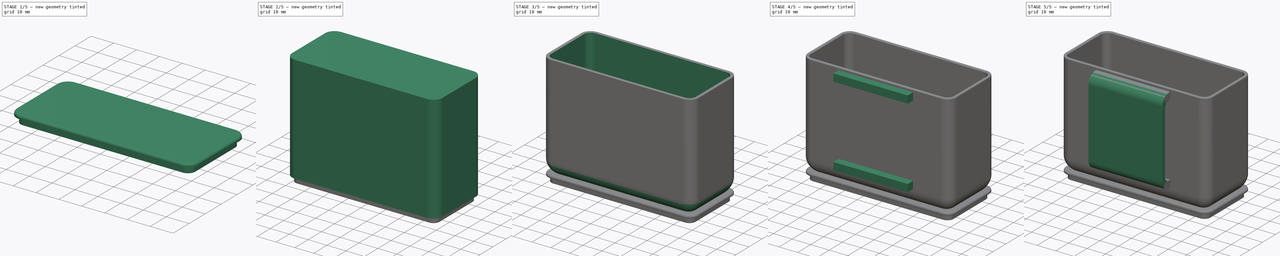
[diagram: build sequence overview — one tinted view per stage of 5, left to right]
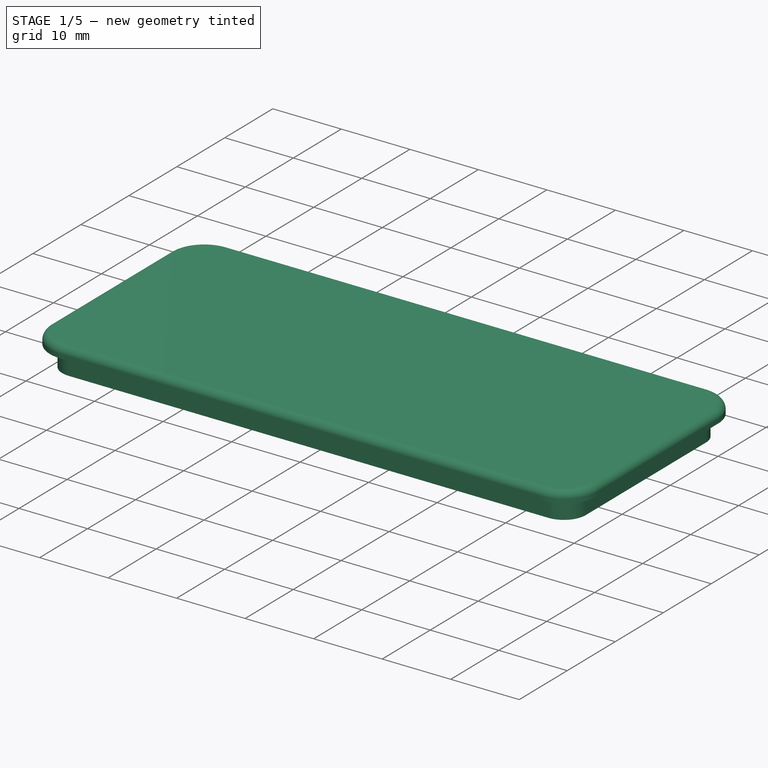
[diagram: stage 1 of 5 — iso view after this stage's code; geometry added in this stage tinted green]
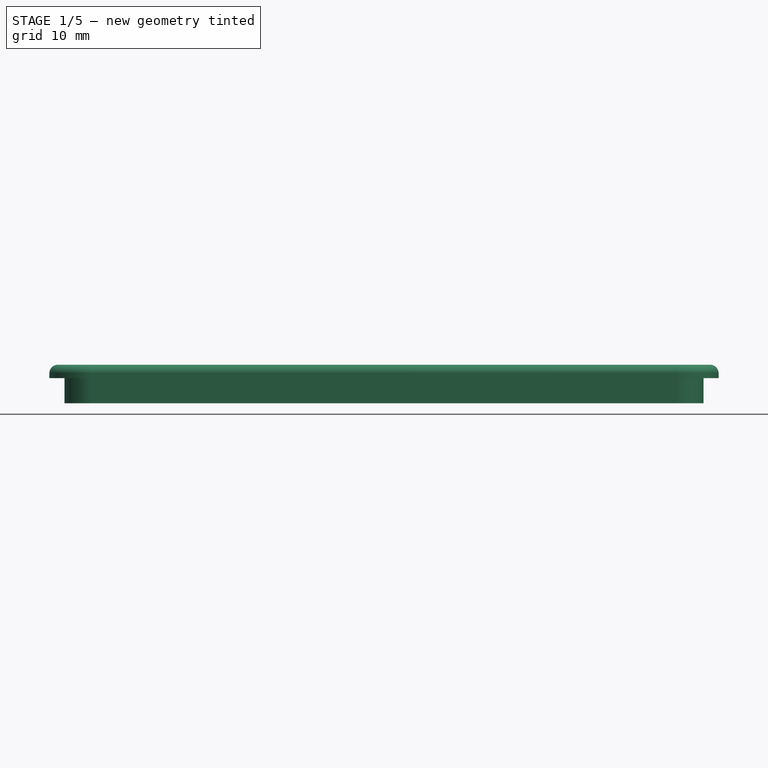
[diagram: stage 1 of 5 — front view after this stage's code; geometry added in this stage tinted green]
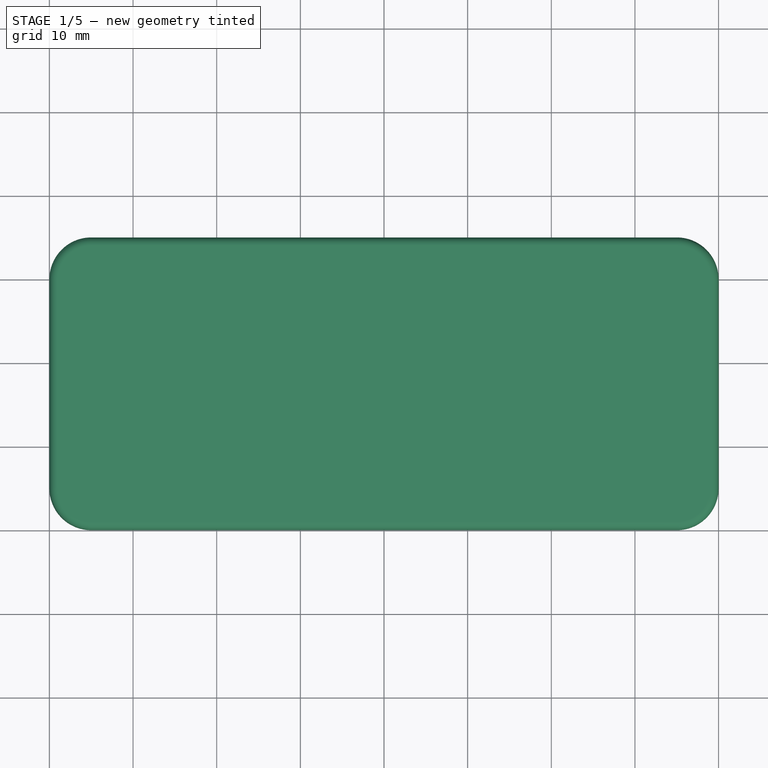
[diagram: stage 1 of 5 — top view after this stage's code; geometry added in this stage tinted green]
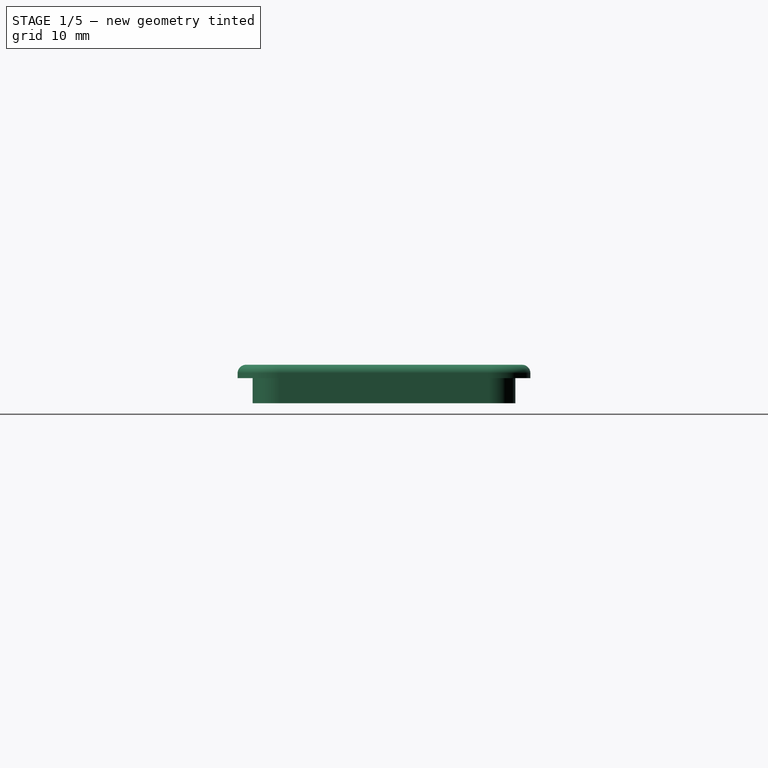
[diagram: stage 1 of 5 — right view after this stage's code; geometry added in this stage tinted green]
FCSTD DOCUMENT  (FreeCAD 1.0R39109 (Git))
Label: Model
License: All rights reserved
LicenseURL: https://en.wikipedia.org/wiki/All_rights_reserved
objects: PartDesign::Fillet×8, Sketcher::SketchObject×6, PartDesign::Pad×5, PartDesign::Body×2, PartDesign::Thickness×1, PartDesign::Pocket×1
note: 59 computed .brp shape members not serialized (recipe doc carries the construction recipe); baked Part::Feature solids carry a one-line shape summary decoded from their .brp

FEATURE [PartDesign::Body] Body
  AllowCompound = false
  Group = -> [Sketch,Pad,Thickness,Fillet,Fillet001,Fillet002,Fillet003,Sketch001,Pad001,Sketch002,Pad002,Fillet004,Fillet005]
  Origin = -> Origin
  Tip = -> Fillet005
FEATURE [Sketcher::SketchObject] Sketch003
  ArcFitTolerance = 1e-06
  AttachmentSupport = -> [XY_Plane001]
  FullyConstrained = true
  MakeInternals = false
  MapMode = 5
  sketch-geometry (10):
    g0: LineSegment StartX=-35 StartY=0 StartZ=0 EndX=0 EndY=0 EndZ=0
    g1: LineSegment StartX=-40 StartY=5 StartZ=0 EndX=-40 EndY=30 EndZ=0
    g2: LineSegment StartX=-35 StartY=35 StartZ=0 EndX=0 EndY=35 EndZ=0
    g3: ArcOfCircle CenterX=-35 CenterY=30 CenterZ=0 NormalX=0 NormalY=0 NormalZ=1 AngleXU=0 Radius=5 StartAngle=1.5708 EndAngle=3.14159
    g4: ArcOfCircle CenterX=-35 CenterY=5 CenterZ=0 NormalX=0 NormalY=0 NormalZ=1 AngleXU=0 Radius=5 StartAngle=3.14159 EndAngle=4.71239
    g5: LineSegment StartX=35 StartY=35 StartZ=0 EndX=0 EndY=35 EndZ=0
    g6: ArcOfCircle CenterX=35 CenterY=30 CenterZ=0 NormalX=0 NormalY=0 NormalZ=1 AngleXU=0 Radius=5 StartAngle=0 EndAngle=1.5708
    g7: LineSegment StartX=40 StartY=5 StartZ=0 EndX=40 EndY=30 EndZ=0
    g8: ArcOfCircle CenterX=35 CenterY=5 CenterZ=0 NormalX=0 NormalY=0 NormalZ=1 AngleXU=0 Radius=5 StartAngle=4.71239 EndAngle=6.28319
    g9: LineSegment StartX=35 StartY=0 StartZ=0 EndX=0 EndY=0 EndZ=0
  constraints (33):
    c: PointOnObject(g0,g-1)
    c: Coincident(g0,g-1)
    c: Vertical(g1)
    c: PointOnObject(g2,g-2)
    c: Horizontal(g2)
    c: Coincident(g3,g1)
    c: Coincident(g3,g2)
    c: Coincident(g4,g1)
    c: Coincident(g4,g0)
    c: Vertical(g3,g2)
    c: Vertical(g4,g0)
    c: Horizontal(g1,g4)
    c: Horizontal(g1,g3)
    c: DistanceX(g2,g2) = 35
    c: Radius(g3) = 5
    c: Radius(g4) = 5
    c: Vertical(g7)
    c: Horizontal(g5)
    c: Coincident(g6,g7)
    c: Coincident(g6,g5)
    c: Coincident(g8,g7)
    c: Coincident(g8,g9)
    c: Radius(g6) = 5
    c: Radius(g8) = 5
    c: Equal(g0,g9)
    c: Equal(g2,g5)
    c: Coincident(g2,g5)
    c: Horizontal(g6,g6)
    c: Vertical(g8,g8)
    c: Horizontal(g8,g7)
    c: PointOnObject(g8,g-1)
    c: DistanceY(g9,g2) = 35
    c: Coincident(g9,g0)
FEATURE [PartDesign::Pad] Pad003
  Direction = (0,0,1)
  Length = 1.6
  Length2 = 10
  Profile = -> Sketch003
  ReferenceAxis = -> Sketch003 [N_Axis]
  Refine = true
  Suppressed = false
  Type = 0
FEATURE [Sketcher::SketchObject] Sketch004
  ArcFitTolerance = 1e-06
  AttachmentSupport = -> [Pad003]
  ExternalGeometry = -> [Pad003]
  FullyConstrained = false
  MakeInternals = false
  MapMode = 5
  Placement = pos=(0,0,0) rot=(1,0,0;3.14159rad)
  sketch-geometry (10):
    g0: LineSegment StartX=-38.2 StartY=-5 StartZ=0 EndX=-38.2 EndY=-30 EndZ=0
    g1: LineSegment StartX=-35 StartY=-33.2 StartZ=0 EndX=0 EndY=-33.2 EndZ=0
    g2: LineSegment StartX=-35 StartY=-1.8 StartZ=0 EndX=0 EndY=-1.8 EndZ=0
    g3: ArcOfCircle CenterX=-35 CenterY=-5 CenterZ=0 NormalX=0 NormalY=0 NormalZ=1 AngleXU=0 Radius=3.2 StartAngle=1.5708 EndAngle=3.14159
    g4: ArcOfCircle CenterX=-35 CenterY=-30 CenterZ=0 NormalX=0 NormalY=0 NormalZ=1 AngleXU=0 Radius=3.2 StartAngle=3.14159 EndAngle=4.71239
    g5: LineSegment StartX=35 StartY=-1.8 StartZ=0 EndX=0 EndY=-1.8 EndZ=0
    g6: ArcOfCircle CenterX=35 CenterY=-5 CenterZ=0 NormalX=0 NormalY=0 NormalZ=1 AngleXU=0 Radius=3.2 StartAngle=0 EndAngle=1.5708
    g7: LineSegment StartX=38.2 StartY=-5 StartZ=0 EndX=38.2 EndY=-30 EndZ=0
    g8: ArcOfCircle CenterX=35 CenterY=-30 CenterZ=0 NormalX=0 NormalY=0 NormalZ=1 AngleXU=0 Radius=3.2 StartAngle=4.71239 EndAngle=6.28319
    g9: LineSegment StartX=35 StartY=-33.2 StartZ=0 EndX=0 EndY=-33.2 EndZ=0
  constraints (24):
    c: Vertical(g0)
    c: PointOnObject(g1,g-2)
    c: Horizontal(g1)
    c: PointOnObject(g2,g-2)
    c: Horizontal(g2)
    c: Coincident(g3,g0)
    c: Coincident(g3,g2)
    c: Coincident(g4,g0)
    c: Coincident(g4,g1)
    c: Equal(g2,g1)
    c: Vertical(g1,g4)
    c: Horizontal(g0,g3)
    c: Horizontal(g0,g4)
    c: Coincident(g4,g-4)
    c: Coincident(g3,g-3)
    c: DistanceY(g-4,g1) = 1.8
    c: Vertical(g7)
    c: Horizontal(g9)
    c: Horizontal(g5)
    c: Coincident(g6,g7)
    c: Coincident(g6,g5)
    c: Coincident(g8,g7)
    c: Coincident(g8,g9)
    c: Equal(g5,g9)
FEATURE [PartDesign::Pad] Pad004
  BaseFeature = -> Pad003
  Direction = (0,0,-1)
  Length = 3
  Length2 = 10
  Profile = -> Sketch004
  ReferenceAxis = -> Sketch004 [N_Axis]
  Refine = true
  Suppressed = false
  Type = 0
FEATURE [PartDesign::Fillet] Fillet006
  Base = -> Pad004 [Edge10]
  BaseFeature = -> Pad004
  Radius = 1
  Refine = true
  SupportTransform = false
  Suppressed = false
  UseAllEdges = false
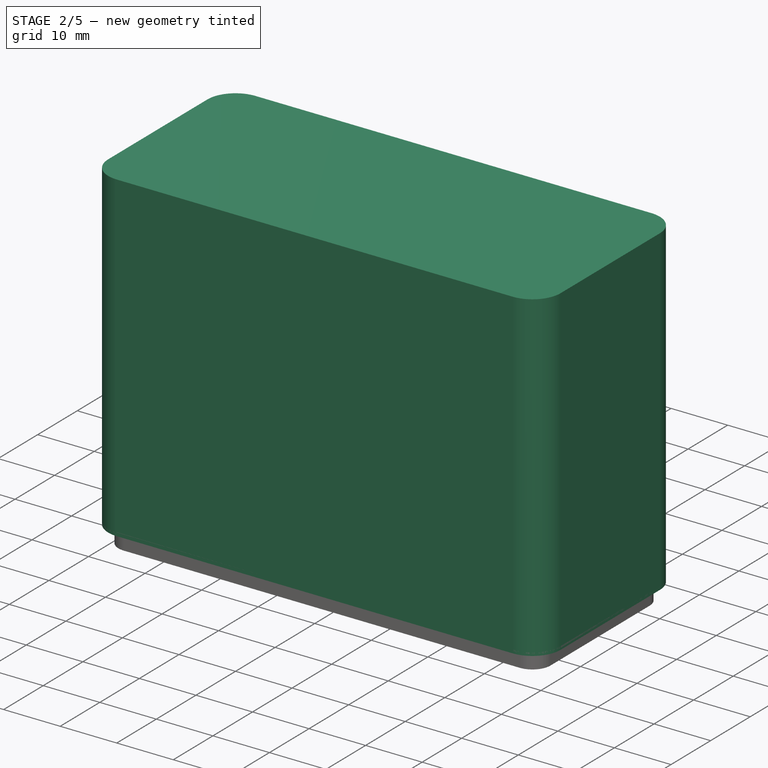
[diagram: stage 2 of 5 — iso view after this stage's code; geometry added in this stage tinted green]
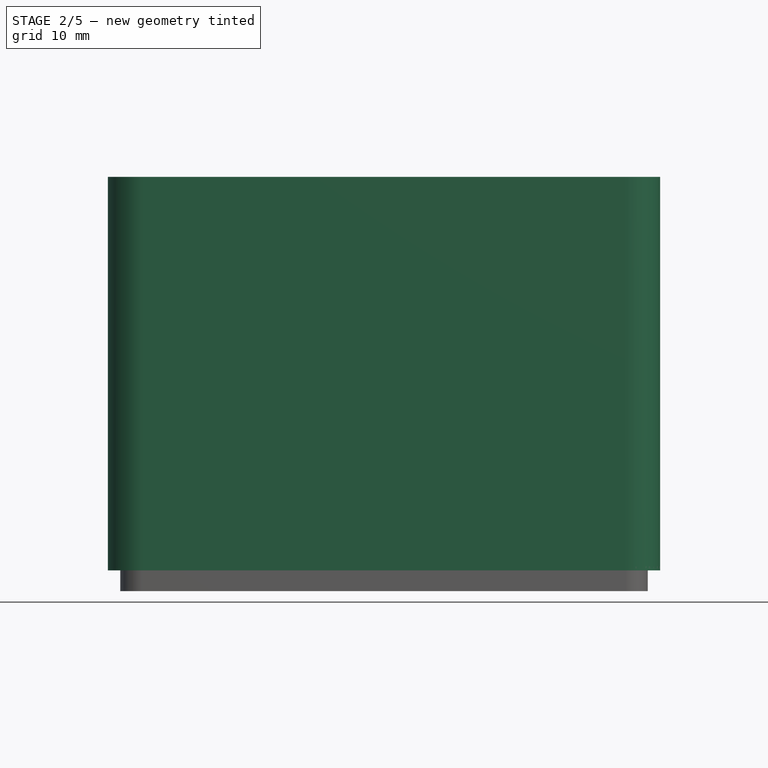
[diagram: stage 2 of 5 — front view after this stage's code; geometry added in this stage tinted green]
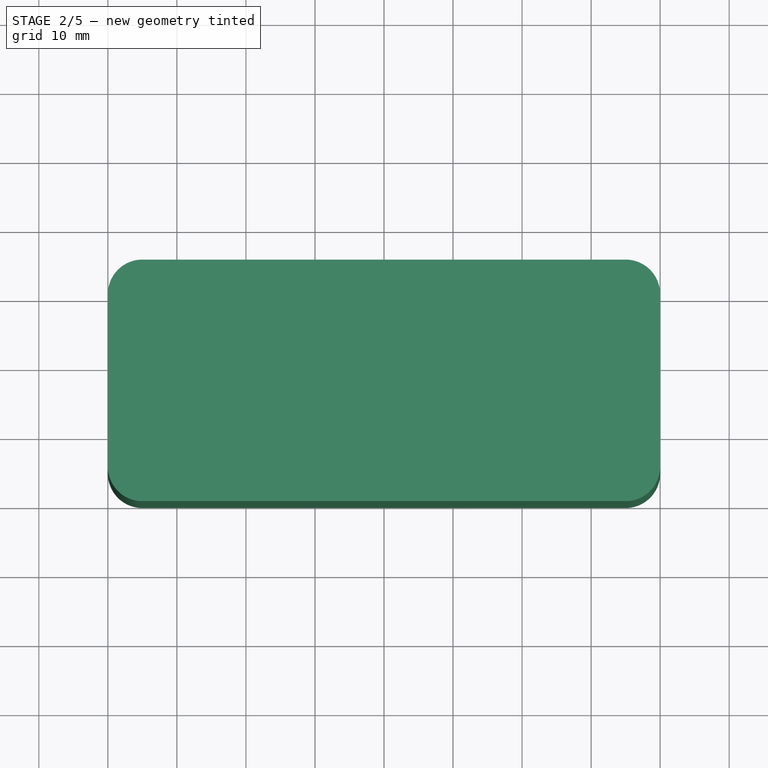
[diagram: stage 2 of 5 — top view after this stage's code; geometry added in this stage tinted green]
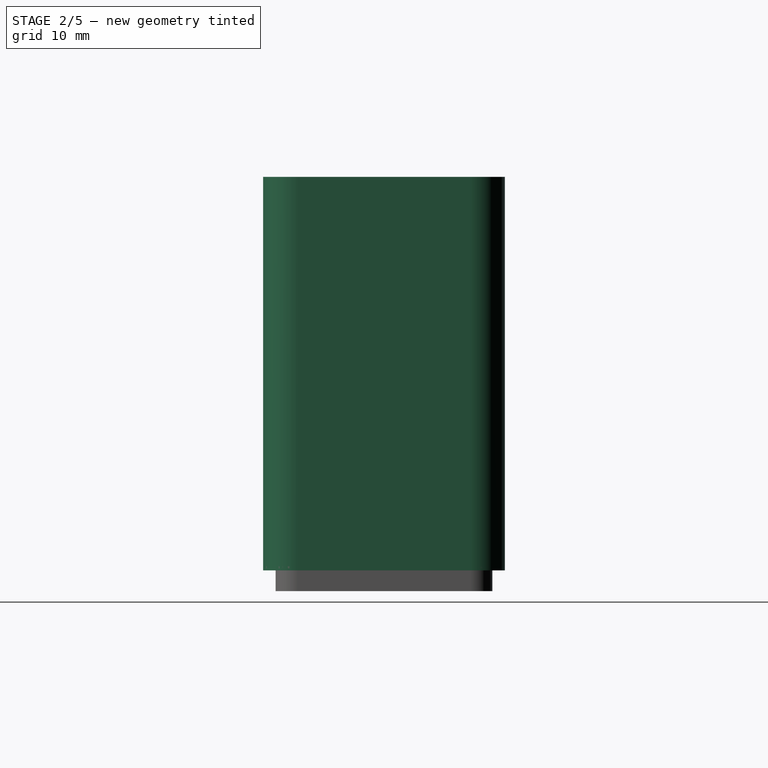
[diagram: stage 2 of 5 — right view after this stage's code; geometry added in this stage tinted green]
FEATURE [Sketcher::SketchObject] Sketch
  ArcFitTolerance = 1e-06
  AttachmentSupport = -> [XY_Plane]
  FullyConstrained = true
  MakeInternals = false
  MapMode = 5
  sketch-geometry (10):
    g0: LineSegment StartX=-35 StartY=0 StartZ=0 EndX=0 EndY=0 EndZ=0
    g1: LineSegment StartX=-40 StartY=5 StartZ=0 EndX=-40 EndY=30 EndZ=0
    g2: LineSegment StartX=-35 StartY=35 StartZ=0 EndX=0 EndY=35 EndZ=0
    g3: ArcOfCircle CenterX=-35 CenterY=30 CenterZ=0 NormalX=0 NormalY=0 NormalZ=1 AngleXU=0 Radius=5 StartAngle=1.5708 EndAngle=3.14159
    g4: ArcOfCircle CenterX=-35 CenterY=5 CenterZ=0 NormalX=0 NormalY=0 NormalZ=1 AngleXU=0 Radius=5 StartAngle=3.14159 EndAngle=4.71239
    g5: LineSegment StartX=35 StartY=35 StartZ=0 EndX=0 EndY=35 EndZ=0
    g6: ArcOfCircle CenterX=35 CenterY=30 CenterZ=0 NormalX=0 NormalY=0 NormalZ=1 AngleXU=0 Radius=5 StartAngle=0 EndAngle=1.5708
    g7: LineSegment StartX=40 StartY=5 StartZ=0 EndX=40 EndY=30 EndZ=0
    g8: ArcOfCircle CenterX=35 CenterY=5 CenterZ=0 NormalX=0 NormalY=0 NormalZ=1 AngleXU=0 Radius=5 StartAngle=4.71239 EndAngle=6.28319
    g9: LineSegment StartX=35 StartY=0 StartZ=0 EndX=0 EndY=0 EndZ=0
  constraints (33):
    c: PointOnObject(g0,g-1)
    c: Coincident(g0,g-1)
    c: Vertical(g1)
    c: PointOnObject(g2,g-2)
    c: Horizontal(g2)
    c: Coincident(g3,g1)
    c: Coincident(g3,g2)
    c: Coincident(g4,g1)
    c: Coincident(g4,g0)
    c: Vertical(g3,g2)
    c: Vertical(g4,g0)
    c: Horizontal(g1,g4)
    c: Horizontal(g1,g3)
    c: DistanceX(g2,g2) = 35
    c: Radius(g3) = 5
    c: Radius(g4) = 5
    c: Vertical(g7)
    c: Horizontal(g5)
    c: Coincident(g6,g7)
    c: Coincident(g6,g5)
    c: Coincident(g8,g7)
    c: Coincident(g8,g9)
    c: Radius(g6) = 5
    c: Radius(g8) = 5
    c: Equal(g0,g9)
    c: Equal(g2,g5)
    c: Coincident(g2,g5)
    c: Horizontal(g6,g6)
    c: Vertical(g8,g8)
    c: Horizontal(g8,g7)
    c: PointOnObject(g8,g-1)
    c: DistanceY(g9,g2) = 35
    c: Coincident(g9,g0)
FEATURE [PartDesign::Pad] Pad
  Direction = (0,0,1)
  Length = 57
  Length2 = 10
  Profile = -> Sketch
  ReferenceAxis = -> Sketch [N_Axis]
  Refine = true
  Suppressed = false
  Type = 0
FEATURE [Sketcher::SketchObject] Sketch005
  ArcFitTolerance = 1e-06
  AttachmentSupport = -> [Fillet006]
  ExternalGeometry = -> [Fillet006]
  FullyConstrained = false
  MakeInternals = false
  MapMode = 5
  Placement = pos=(0,0,-3) rot=(1,0,0;3.14159rad)
  sketch-geometry (10):
    g0: LineSegment StartX=-36.6 StartY=-5 StartZ=0 EndX=-36.6 EndY=-30 EndZ=0
    g1: LineSegment StartX=-35 StartY=-31.6 StartZ=0 EndX=0 EndY=-31.6 EndZ=0
    g2: LineSegment StartX=-35 StartY=-3.4 StartZ=0 EndX=0 EndY=-3.4 EndZ=0
    g3: ArcOfCircle CenterX=-35 CenterY=-5 CenterZ=0 NormalX=0 NormalY=0 NormalZ=1 AngleXU=0 Radius=1.6 StartAngle=1.5708 EndAngle=3.14159
    g4: ArcOfCircle CenterX=-35 CenterY=-30 CenterZ=0 NormalX=0 NormalY=0 NormalZ=1 AngleXU=0 Radius=1.6 StartAngle=3.14159 EndAngle=4.71239
    g5: LineSegment StartX=35 StartY=-3.4 StartZ=0 EndX=0 EndY=-3.4 EndZ=0
    g6: ArcOfCircle CenterX=35 CenterY=-5 CenterZ=0 NormalX=0 NormalY=0 NormalZ=1 AngleXU=0 Radius=1.6 StartAngle=0 EndAngle=1.5708
    g7: LineSegment StartX=36.6 StartY=-5 StartZ=0 EndX=36.6 EndY=-30 EndZ=0
    g8: ArcOfCircle CenterX=35 CenterY=-30 CenterZ=0 NormalX=0 NormalY=0 NormalZ=1 AngleXU=0 Radius=1.6 StartAngle=4.71239 EndAngle=6.28319
    g9: LineSegment StartX=35 StartY=-31.6 StartZ=0 EndX=0 EndY=-31.6 EndZ=0
  constraints (24):
    c: Vertical(g0)
    c: PointOnObject(g1,g-2)
    c: Horizontal(g1)
    c: PointOnObject(g2,g-2)
    c: Horizontal(g2)
    c: Coincident(g3,g2)
    c: Coincident(g3,g0)
    c: Coincident(g4,g0)
    c: Coincident(g4,g1)
    c: Equal(g2,g1)
    c: Horizontal(g0,g3)
    c: Horizontal(g0,g4)
    c: Vertical(g3,g2)
    c: Coincident(g3,g-3)
    c: Coincident(g4,g-6)
    c: Distance(g-3,g0) = 1.6
    c: Vertical(g7)
    c: Horizontal(g9)
    c: Horizontal(g5)
    c: Coincident(g6,g5)
    c: Coincident(g6,g7)
    c: Coincident(g8,g7)
    c: Coincident(g8,g9)
    c: Equal(g5,g9)
FEATURE [PartDesign::Pocket] Pocket
  BaseFeature = -> Fillet006
  Direction = (0,0,1)
  Length = 2
  Length2 = 5
  Profile = -> Sketch005
  ReferenceAxis = -> Sketch005 [N_Axis]
  Refine = true
  Suppressed = false
  Type = 0
FEATURE [PartDesign::Fillet] Fillet007
  Base = -> Pocket [Edge11]
  BaseFeature = -> Pocket
  Radius = 0.3
  Refine = true
  SupportTransform = false
  Suppressed = false
  UseAllEdges = false
FEATURE [PartDesign::Body] Body001
  AllowCompound = false
  Group = -> [Sketch003,Pad003,Sketch004,Pad004,Fillet006,Sketch005,Pocket,Fillet007]
  Origin = -> Origin001
  Tip = -> Fillet007
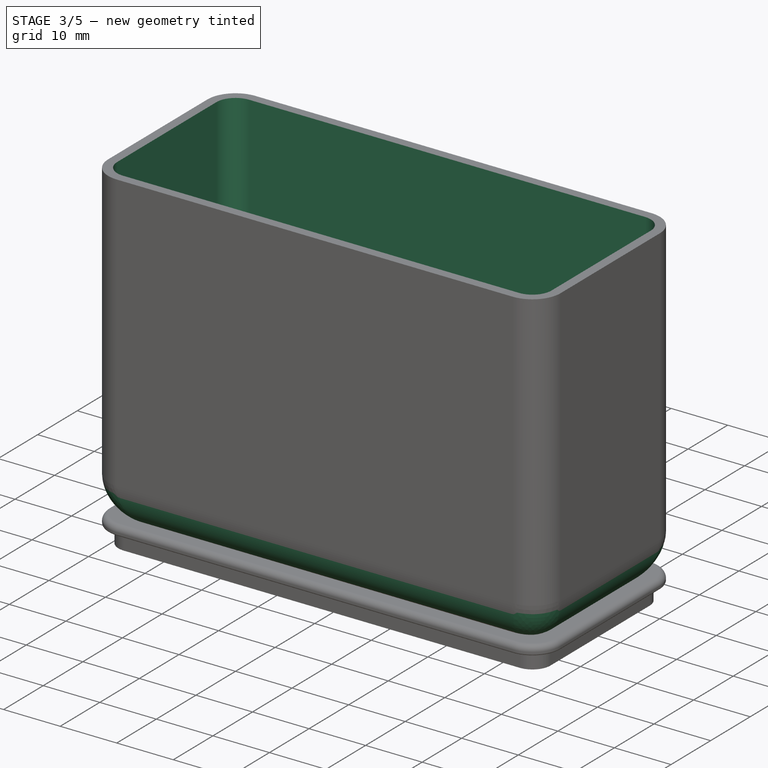
[diagram: stage 3 of 5 — iso view after this stage's code; geometry added in this stage tinted green]
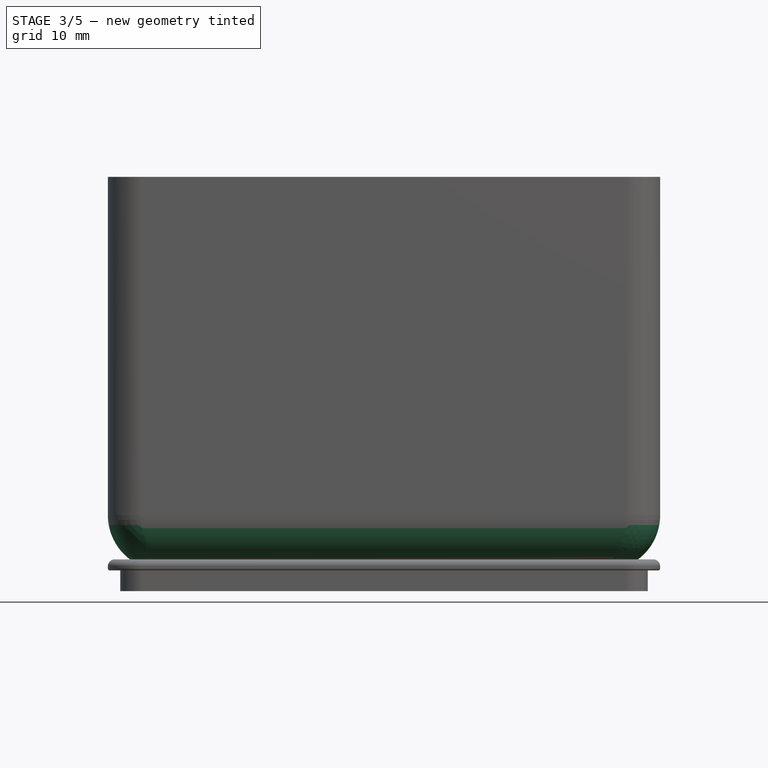
[diagram: stage 3 of 5 — front view after this stage's code; geometry added in this stage tinted green]
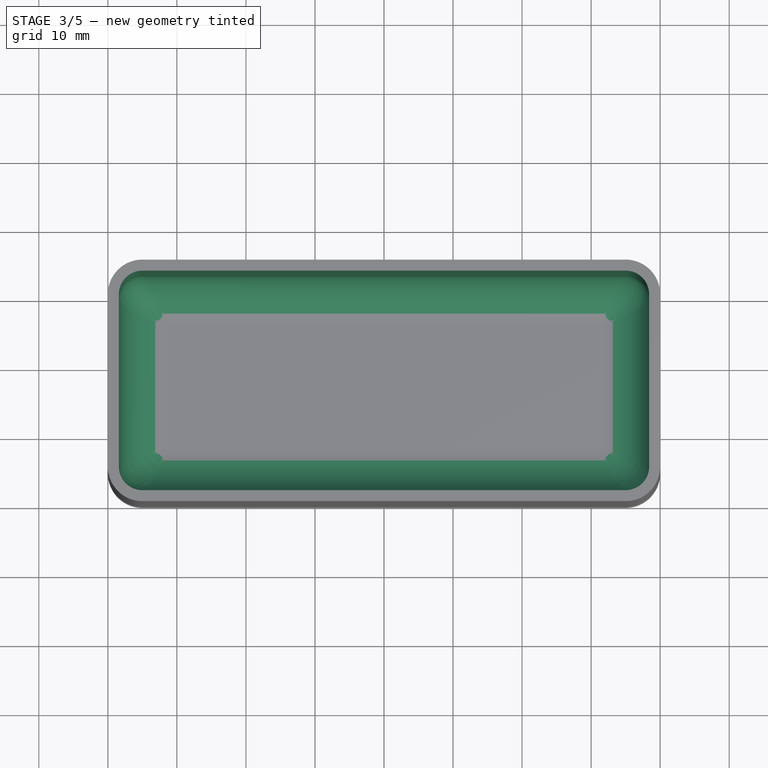
[diagram: stage 3 of 5 — top view after this stage's code; geometry added in this stage tinted green]
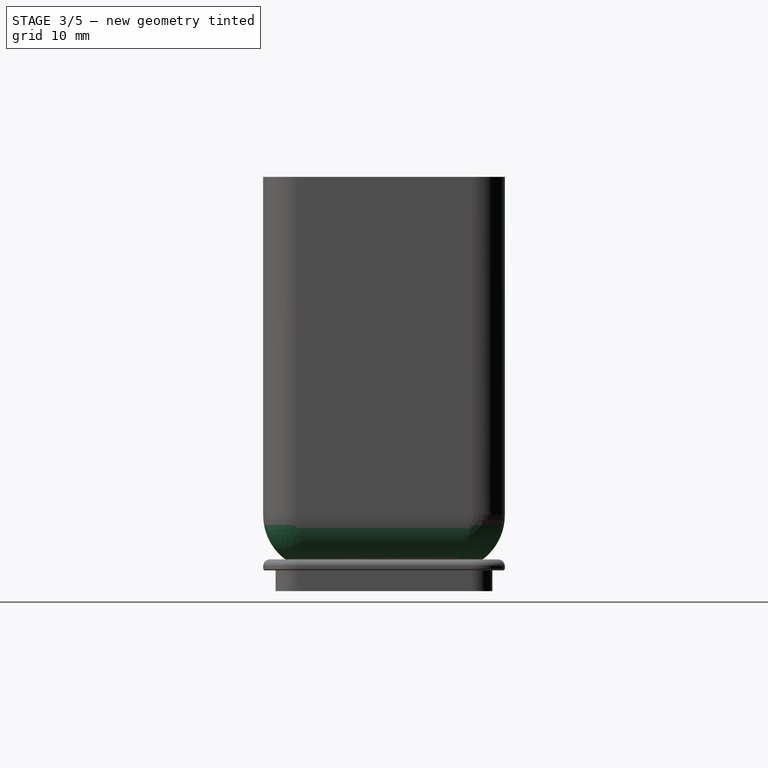
[diagram: stage 3 of 5 — right view after this stage's code; geometry added in this stage tinted green]
FEATURE [PartDesign::Thickness] Thickness
  Base = -> Pad [Face8]
  BaseFeature = -> Pad
  Intersection = false
  Join = 0
  Mode = 0
  Refine = true
  Reversed = true
  SupportTransform = false
  Suppressed = false
  Value = 1.6
FEATURE [PartDesign::Fillet] Fillet
  Base = -> Thickness [Edge45]
  BaseFeature = -> Thickness
  Radius = 7
  Refine = true
  SupportTransform = false
  Suppressed = false
  UseAllEdges = false
FEATURE [PartDesign::Fillet] Fillet001
  Base = -> Fillet [Edge41]
  BaseFeature = -> Fillet
  Radius = 8
  Refine = true
  SupportTransform = false
  Suppressed = false
  UseAllEdges = false
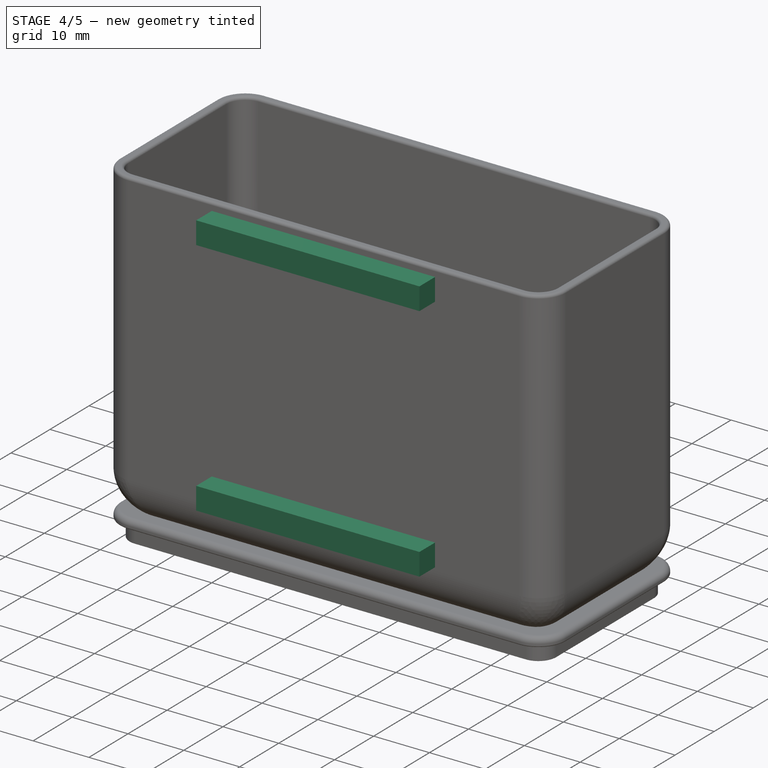
[diagram: stage 4 of 5 — iso view after this stage's code; geometry added in this stage tinted green]
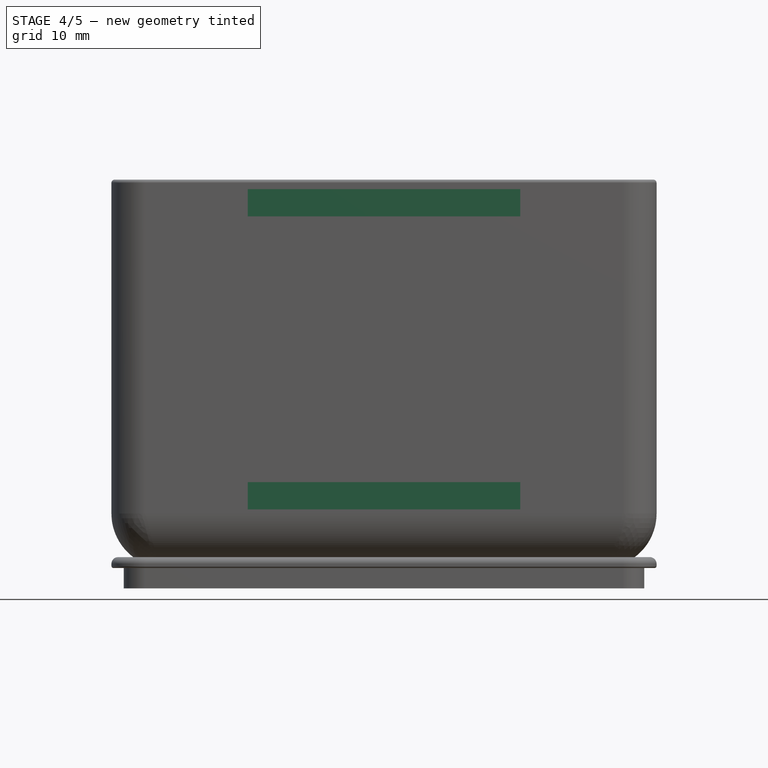
[diagram: stage 4 of 5 — front view after this stage's code; geometry added in this stage tinted green]
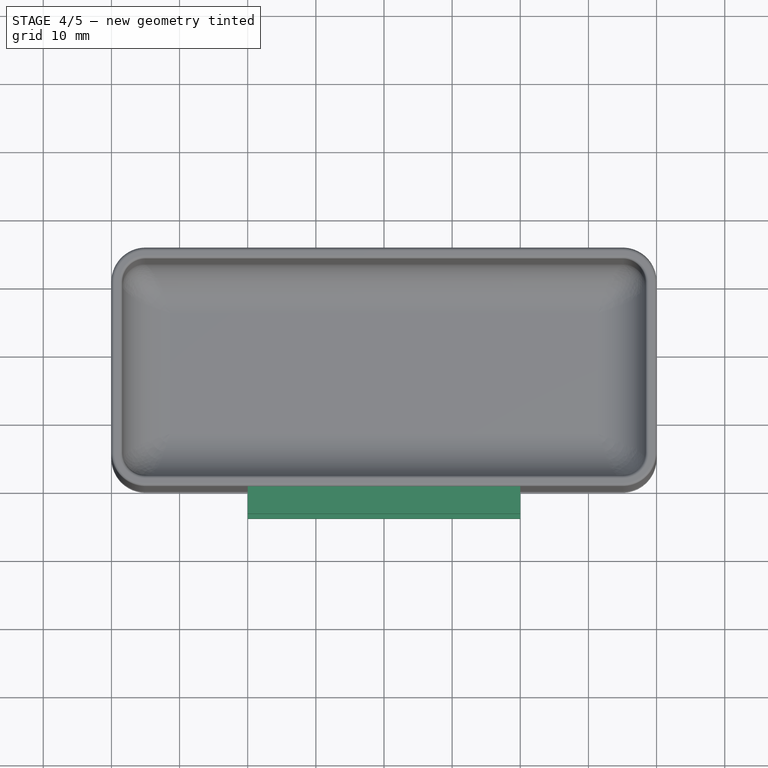
[diagram: stage 4 of 5 — top view after this stage's code; geometry added in this stage tinted green]
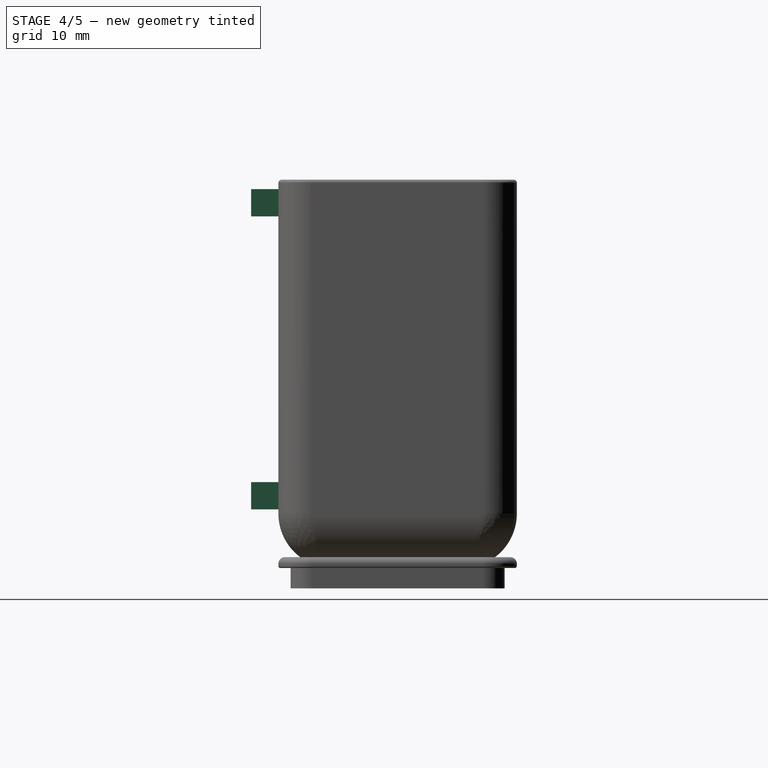
[diagram: stage 4 of 5 — right view after this stage's code; geometry added in this stage tinted green]
FEATURE [PartDesign::Fillet] Fillet002
  Base = -> Fillet001 [Edge13]
  BaseFeature = -> Fillet001
  Radius = 0.5
  Refine = true
  SupportTransform = false
  Suppressed = false
  UseAllEdges = false
FEATURE [PartDesign::Fillet] Fillet003
  Base = -> Fillet002 [Edge33]
  BaseFeature = -> Fillet002
  Radius = 0.5
  Refine = true
  SupportTransform = false
  Suppressed = false
  UseAllEdges = false
FEATURE [Sketcher::SketchObject] Sketch001
  ArcFitTolerance = 1e-06
  AttachmentSupport = -> [Fillet003]
  ExternalGeometry = -> [Fillet003]
  FullyConstrained = true
  MakeInternals = false
  MapMode = 5
  Placement = pos=(0,-1e-16,0) rot=(1,0,0;1.5708rad)
  sketch-geometry (10):
    g0: LineSegment StartX=-20 StartY=55.6 StartZ=0 EndX=-20 EndY=51.6 EndZ=0
    g1: LineSegment StartX=-20 StartY=51.6 StartZ=0 EndX=20 EndY=51.6 EndZ=0
    g2: LineSegment StartX=20 StartY=51.6 StartZ=0 EndX=20 EndY=55.6 EndZ=0
    g3: LineSegment StartX=20 StartY=55.6 StartZ=0 EndX=-20 EndY=55.6 EndZ=0
    g4: GeomPoint [constr] X=0 Y=53.6 Z=0
    g5: LineSegment StartX=-20 StartY=12.6 StartZ=0 EndX=-20 EndY=8.6 EndZ=0
    g6: LineSegment StartX=-20 StartY=8.6 StartZ=0 EndX=20 EndY=8.6 EndZ=0
    g7: LineSegment StartX=20 StartY=8.6 StartZ=0 EndX=20 EndY=12.6 EndZ=0
    g8: LineSegment StartX=20 StartY=12.6 StartZ=0 EndX=-20 EndY=12.6 EndZ=0
    g9: GeomPoint [constr] X=0 Y=10.6 Z=0
  constraints (26):
    c: Coincident(g0,g1)
    c: Coincident(g1,g2)
    c: Coincident(g2,g3)
    c: Coincident(g3,g0)
    c: Vertical(g0)
    c: Vertical(g2)
    c: Horizontal(g1)
    c: Horizontal(g3)
    c: Symmetric(g2,g0,g4)
    c: PointOnObject(g4,g-2)
    c: Coincident(g5,g6)
    c: Coincident(g6,g7)
    c: Coincident(g7,g8)
    c: Coincident(g8,g5)
    c: Vertical(g5)
    c: Vertical(g7)
    c: Horizontal(g6)
    c: Horizontal(g8)
    c: Symmetric(g7,g5,g9)
    c: PointOnObject(g9,g-2)
    c: Vertical(g7,g1)
    c: Equal(g2,g7)
    c: DistanceY(g7,g1) = 39
    c: Distance(g2,g2) = 4
    c: PointOnObject(g6,g-3)
    c: Distance(g3,g3) = 40
FEATURE [PartDesign::Pad] Pad001
  BaseFeature = -> Fillet003
  Direction = (0,-1,2e-16)
  Length = 4
  Length2 = 10
  Profile = -> Sketch001
  ReferenceAxis = -> Sketch001 [N_Axis]
  Refine = true
  Suppressed = false
  Type = 0
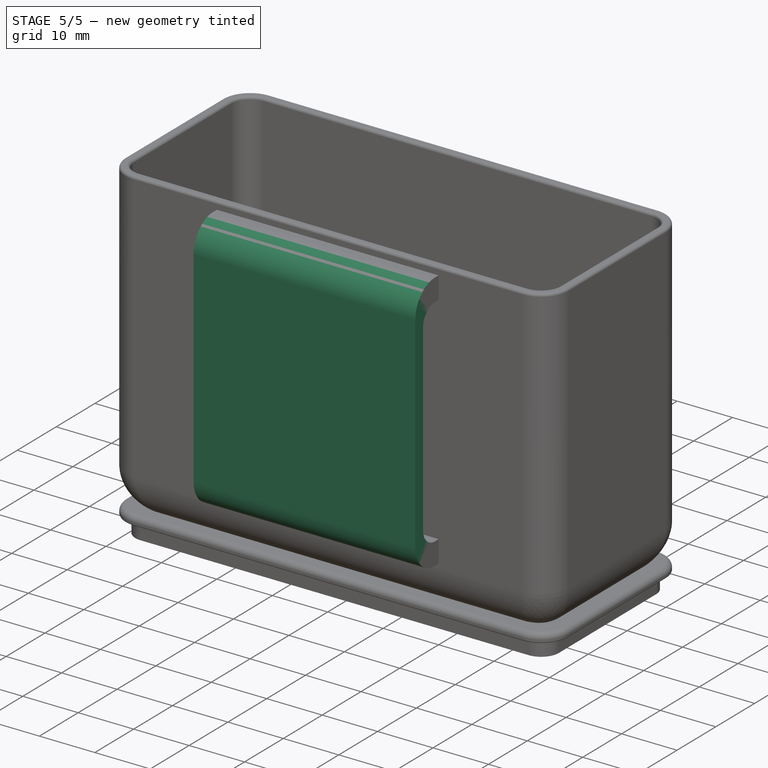
[diagram: stage 5 of 5 — iso view after this stage's code; geometry added in this stage tinted green]
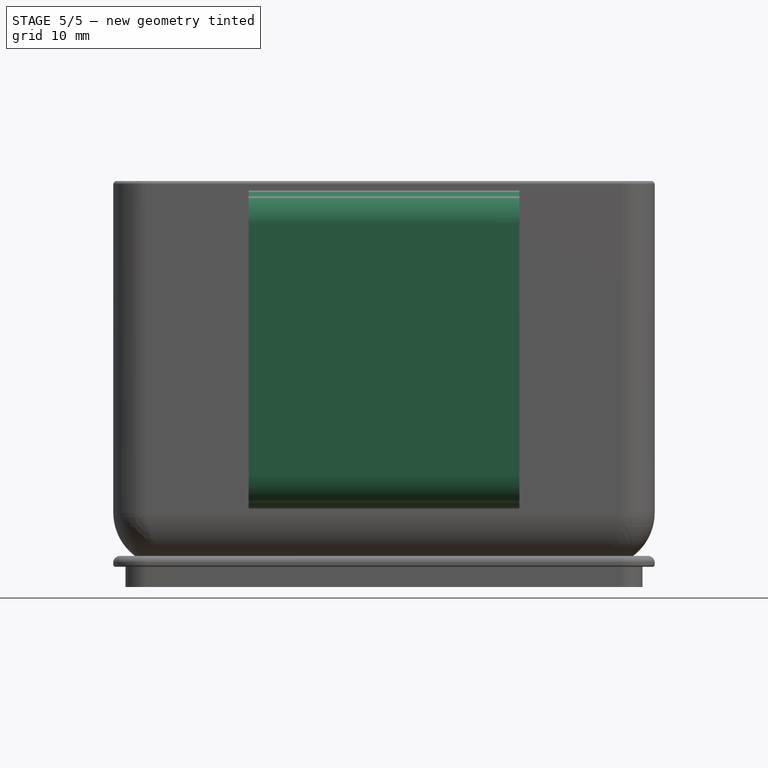
[diagram: stage 5 of 5 — front view after this stage's code; geometry added in this stage tinted green]
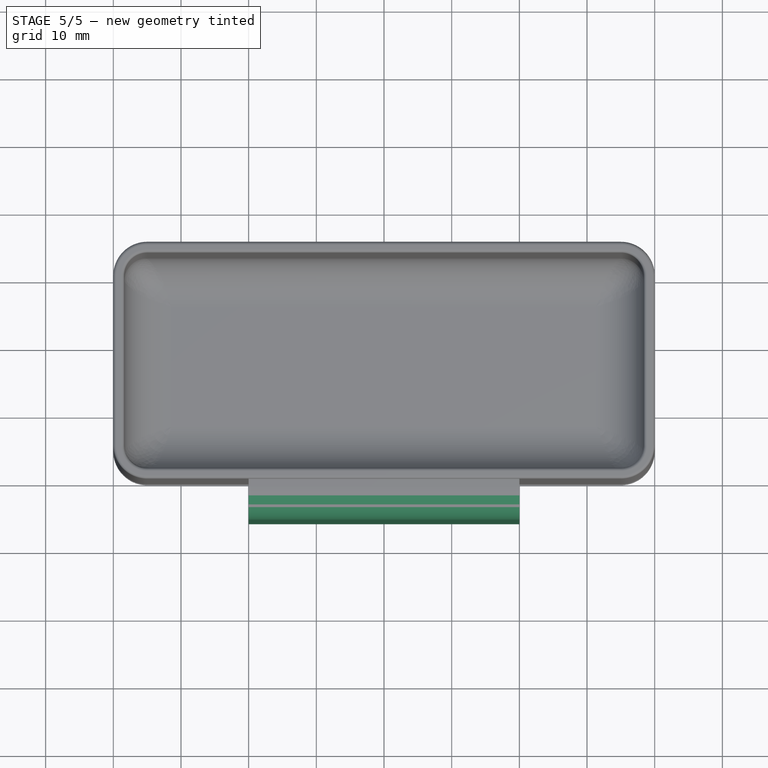
[diagram: stage 5 of 5 — top view after this stage's code; geometry added in this stage tinted green]
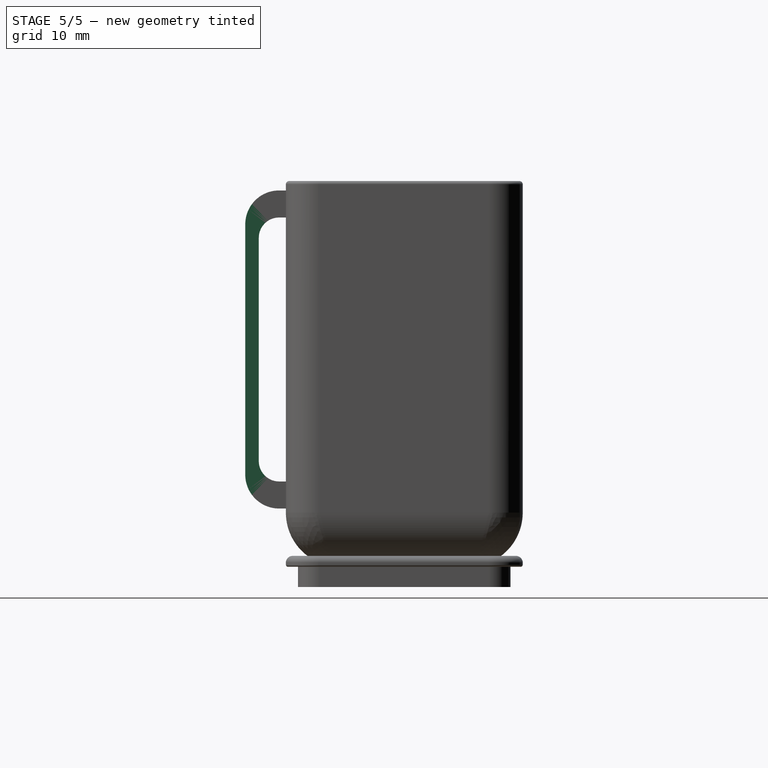
[diagram: stage 5 of 5 — right view after this stage's code; geometry added in this stage tinted green]
FEATURE [Sketcher::SketchObject] Sketch002
  ArcFitTolerance = 1e-06
  AttachmentSupport = -> [Pad001]
  ExternalGeometry = -> [Pad001]
  FullyConstrained = true
  MakeInternals = false
  MapMode = 5
  Placement = pos=(0,-4,9e-16) rot=(1,0,0;1.5708rad)
  sketch-geometry (4):
    g0: LineSegment StartX=-20 StartY=55.6 StartZ=0 EndX=-20 EndY=8.6 EndZ=0
    g1: LineSegment StartX=-20 StartY=8.6 StartZ=0 EndX=20 EndY=8.6 EndZ=0
    g2: LineSegment StartX=20 StartY=8.6 StartZ=0 EndX=20 EndY=55.6 EndZ=0
    g3: LineSegment StartX=20 StartY=55.6 StartZ=0 EndX=-20 EndY=55.6 EndZ=0
  constraints (10):
    c: Coincident(g0,g1)
    c: Coincident(g1,g2)
    c: Coincident(g2,g3)
    c: Coincident(g3,g0)
    c: Vertical(g0)
    c: Vertical(g2)
    c: Horizontal(g1)
    c: Horizontal(g3)
    c: Coincident(g0,g-3)
    c: Coincident(g1,g-4)
FEATURE [PartDesign::Pad] Pad002
  BaseFeature = -> Pad001
  Direction = (0,-1,2e-16)
  Length = 2
  Length2 = 10
  Profile = -> Sketch002
  ReferenceAxis = -> Sketch002 [N_Axis]
  Refine = true
  Suppressed = false
  Type = 0
FEATURE [PartDesign::Fillet] Fillet004
  Base = -> Pad002 [Edge134,Edge132]
  BaseFeature = -> Pad002
  Radius = 5
  Refine = true
  SupportTransform = false
  Suppressed = false
  UseAllEdges = false
FEATURE [PartDesign::Fillet] Fillet005
  Base = -> Fillet004 [Edge28,Edge32]
  BaseFeature = -> Fillet004
  Radius = 3
  Refine = true
  SupportTransform = false
  Suppressed = false
  UseAllEdges = false
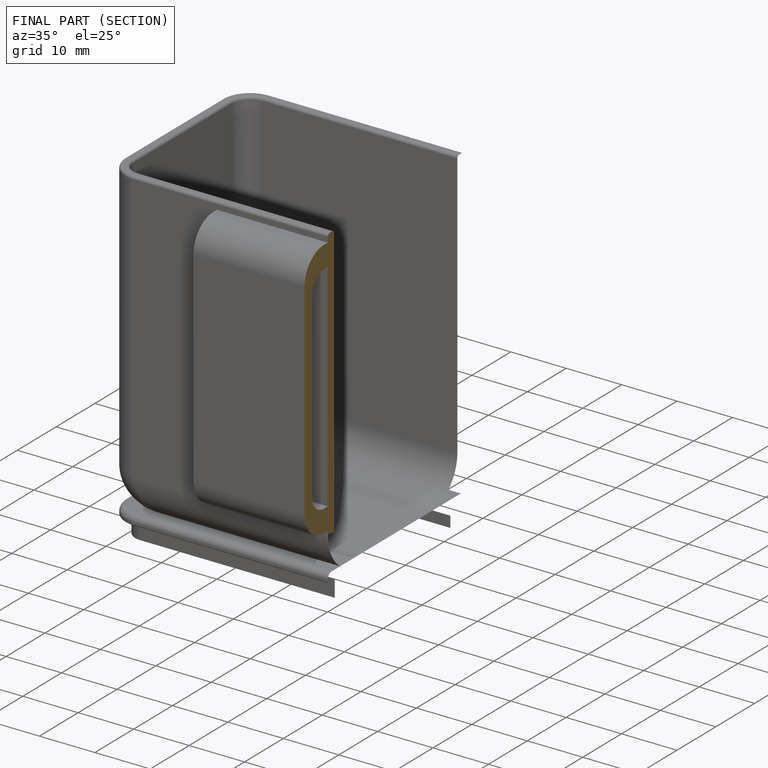
[diagram: finished part — half-section view (interior)]
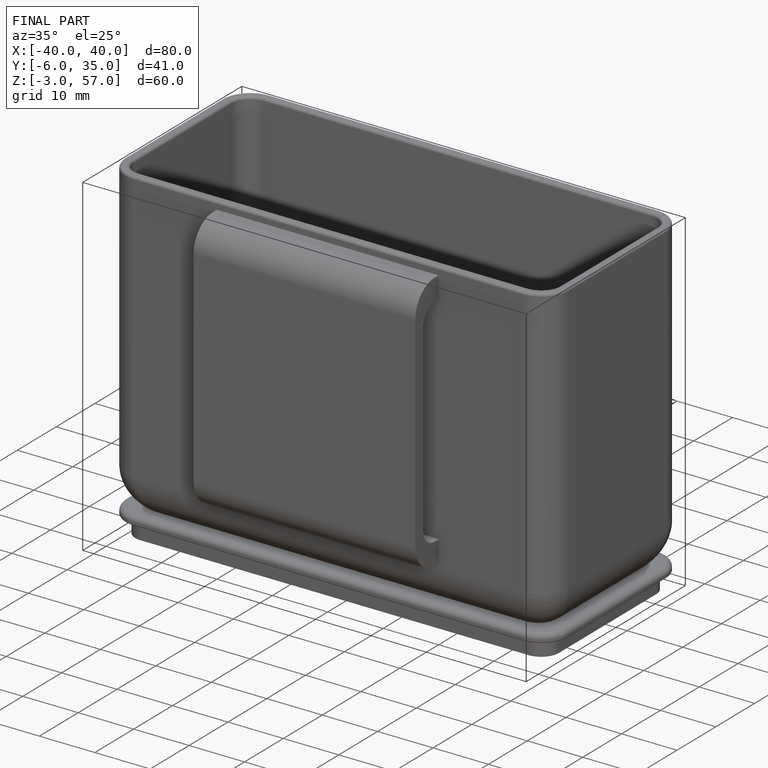
[diagram: finished part — iso view with bounding-box wireframe]
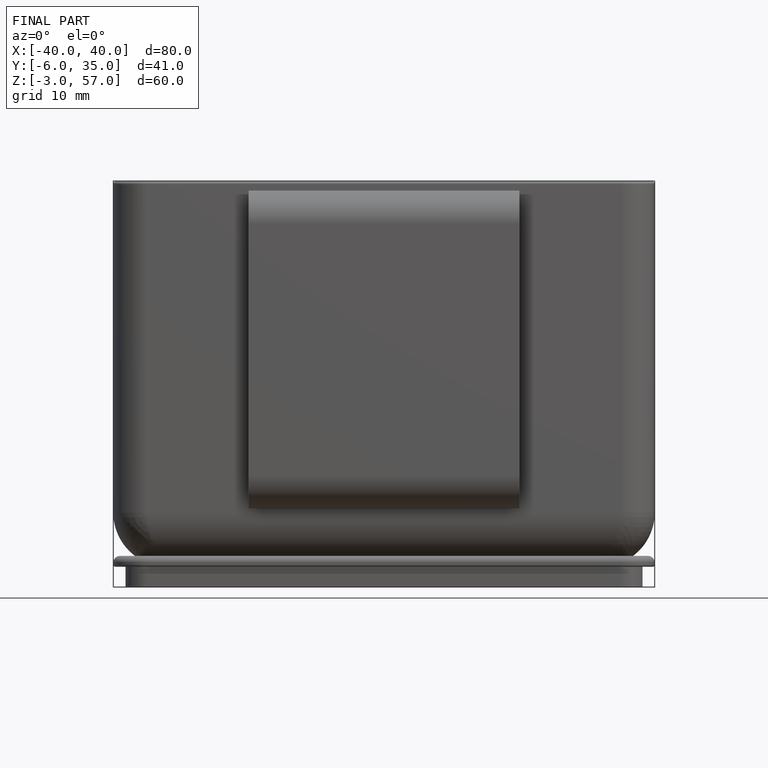
[diagram: finished part — front view with bounding-box wireframe]
